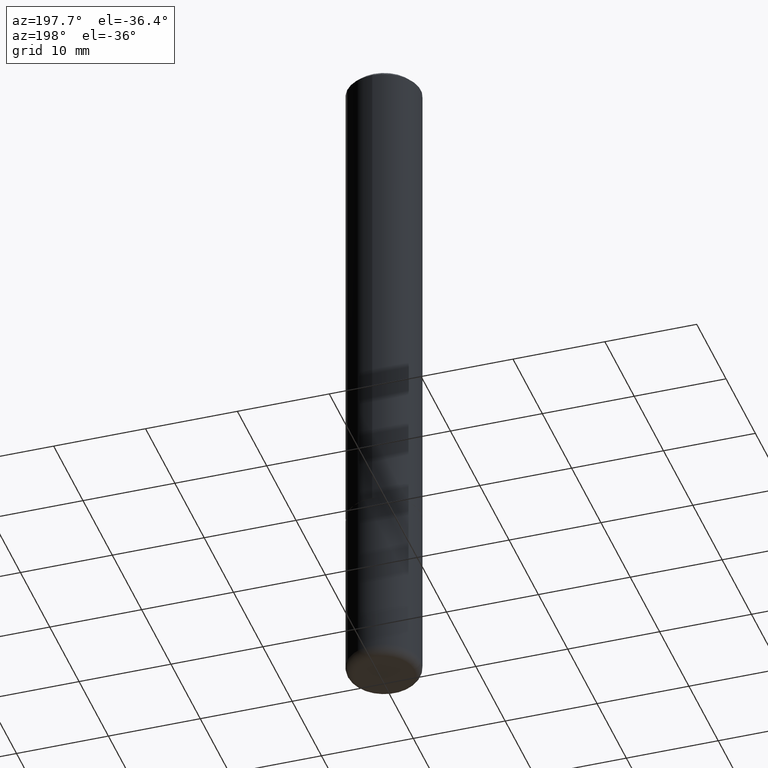
[diagram: clean part render]
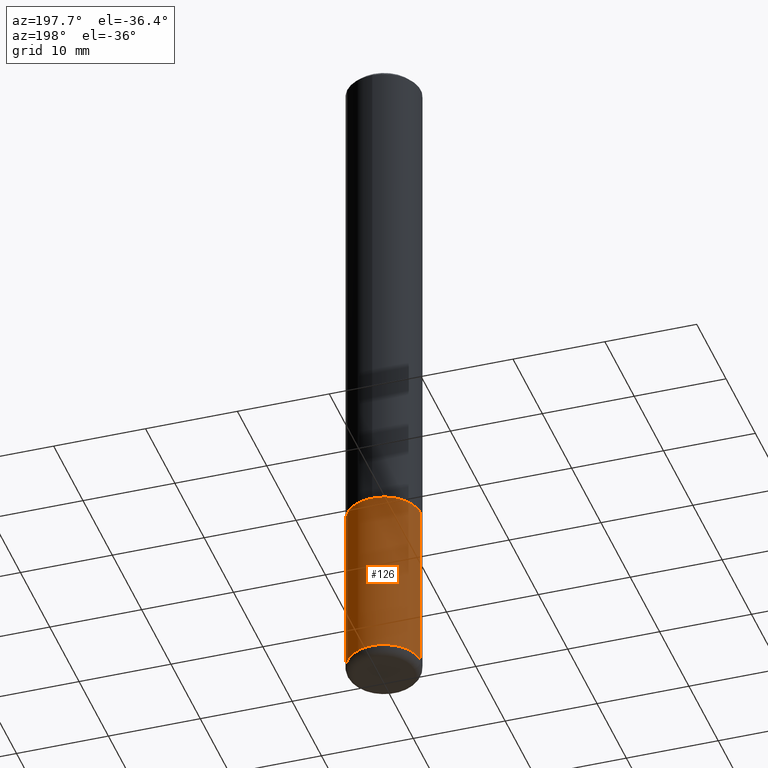
[diagram: same view with one face highlighted and labeled with its STEP entity id]
A machine part, auxiliary view. The second image highlights one B-rep face of the part: STEP entity #126.
In plain terms, the highlighted cylindrical surface (partial cylindrical patch) has radius 4.0005 mm, axis along (-0, 0, 1).
Its self-contained STEP definition (entity closure, byte-faithful):
#1 = DIRECTION ( 'NONE',  ( -2.445468806185136597E-29, 3.491481338843145583E-15, 1.000000000000000000 ) ) ;
#5 = CIRCLE ( 'NONE', #236, 0.1575000000000000011 ) ;
#6 = AXIS2_PLACEMENT_3D ( 'NONE', #390, #98, #267 ) ;
#7 = FACE_OUTER_BOUND ( 'NONE', #409, .T. ) ;
#10 = LINE ( 'NONE', #104, #48 ) ;
#27 = CARTESIAN_POINT ( 'NONE',  ( -0.1575000000000000011, -7.747162903036124976E-15, -2.165399999999999991 ) ) ;
#32 = DIRECTION ( 'NONE',  ( 1.000000000000000000, -6.982962677686261977E-15, 0.000000000000000000 ) ) ;
#45 = DIRECTION ( 'NONE',  ( -2.445468806185136597E-29, 3.491481338843145583E-15, 1.000000000000000000 ) ) ;
#46 = CARTESIAN_POINT ( 'NONE',  ( 0.1575000000000000289, -1.127189835432120758E-14, -2.913399999999999768 ) ) ;
#48 = VECTOR ( 'NONE', #235, 39.37007874015748143 ) ;
#84 = EDGE_CURVE ( 'NONE', #268, #361, #10, .T. ) ;
#86 = EDGE_CURVE ( 'NONE', #361, #106, #224, .T. ) ;
#95 = VECTOR ( 'NONE', #140, 39.37007874015748143 ) ;
#98 = DIRECTION ( 'NONE',  ( -2.445468806185136597E-29, 3.491481338843145583E-15, 1.000000000000000000 ) ) ;
#104 = CARTESIAN_POINT ( 'NONE',  ( 0.1575000000000000011, -1.099816621735586889E-15, 7.679978421878598033E-30 ) ) ;
#106 = VERTEX_POINT ( 'NONE', #27 ) ;
#125 = EDGE_CURVE ( 'NONE', #268, #191, #5, .T. ) ;
#126 = ADVANCED_FACE ( 'NONE', ( #7 ), #261, .T. ) ;
#140 = DIRECTION ( 'NONE',  ( -2.445468806185136877E-29, 3.491481338843145188E-15, 1.000000000000000000 ) ) ;
#168 = ORIENTED_EDGE ( 'NONE', *, *, #125, .T. ) ;
#169 = DIRECTION ( 'NONE',  ( 1.000000000000000000, -6.982962677686268288E-15, 0.000000000000000000 ) ) ;
#191 = VERTEX_POINT ( 'NONE', #256 ) ;
#202 = ORIENTED_EDGE ( 'NONE', *, *, #393, .T. ) ;
#224 = CIRCLE ( 'NONE', #336, 0.1575000000000000011 ) ;
#235 = DIRECTION ( 'NONE',  ( -2.445468806185136877E-29, 3.491481338843145188E-15, 1.000000000000000000 ) ) ;
#236 = AXIS2_PLACEMENT_3D ( 'NONE', #265, #1, #32 ) ;
#238 = ORIENTED_EDGE ( 'NONE', *, *, #84, .F. ) ;
#256 = CARTESIAN_POINT ( 'NONE',  ( -0.1575000000000000289, -9.052976923763463288E-15, -2.913399999999999768 ) ) ;
#261 = CYLINDRICAL_SURFACE ( 'NONE', #6, 0.1575000000000000011 ) ;
#265 = CARTESIAN_POINT ( 'NONE',  ( 7.124628819939776708E-29, -1.017208173258561931E-14, -2.913399999999999768 ) ) ;
#267 = DIRECTION ( 'NONE',  ( 1.000000000000000000, -6.982962677686265922E-15, 4.876176775795935232E-29 ) ) ;
#268 = VERTEX_POINT ( 'NONE', #46 ) ;
#285 = CARTESIAN_POINT ( 'NONE',  ( -0.1575000000000000011, 1.119104808822157801E-15, -7.747322767151475583E-30 ) ) ;
#309 = LINE ( 'NONE', #285, #95 ) ;
#336 = AXIS2_PLACEMENT_3D ( 'NONE', #366, #45, #169 ) ;
#361 = VERTEX_POINT ( 'NONE', #371 ) ;
#366 = CARTESIAN_POINT ( 'NONE',  ( 5.295418152913294345E-29, -7.560453691130947423E-15, -2.165399999999999991 ) ) ;
#371 = CARTESIAN_POINT ( 'NONE',  ( 0.1575000000000000011, -8.660270312866534114E-15, -2.165399999999999991 ) ) ;
#385 = ORIENTED_EDGE ( 'NONE', *, *, #86, .F. ) ;
#390 = CARTESIAN_POINT ( 'NONE',  ( 0.000000000000000000, 0.000000000000000000, 0.000000000000000000 ) ) ;
#393 = EDGE_CURVE ( 'NONE', #191, #106, #309, .T. ) ;
#409 = EDGE_LOOP ( 'NONE', ( #168, #202, #385, #238 ) ) ;